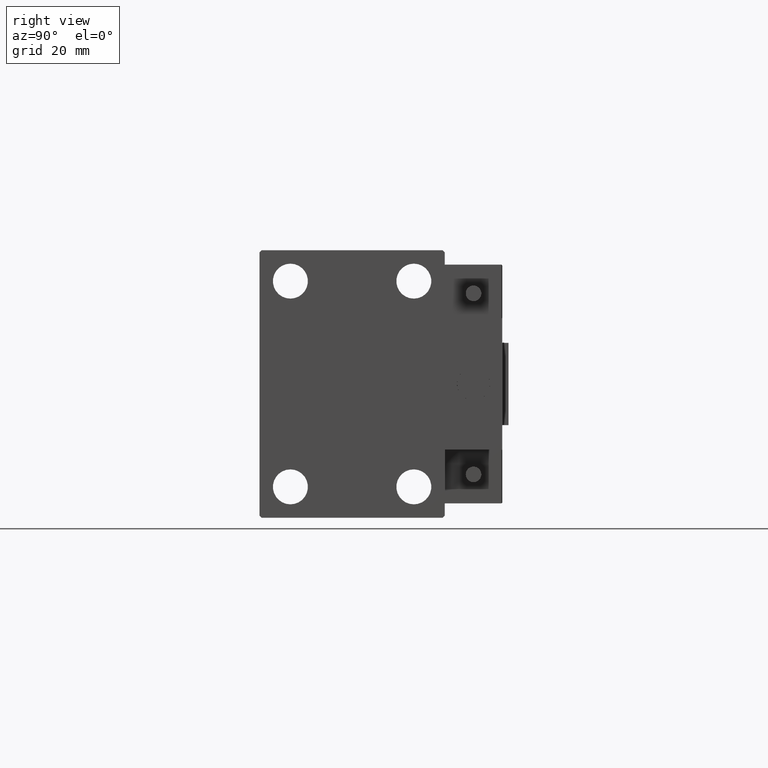
[diagram: clean part render]
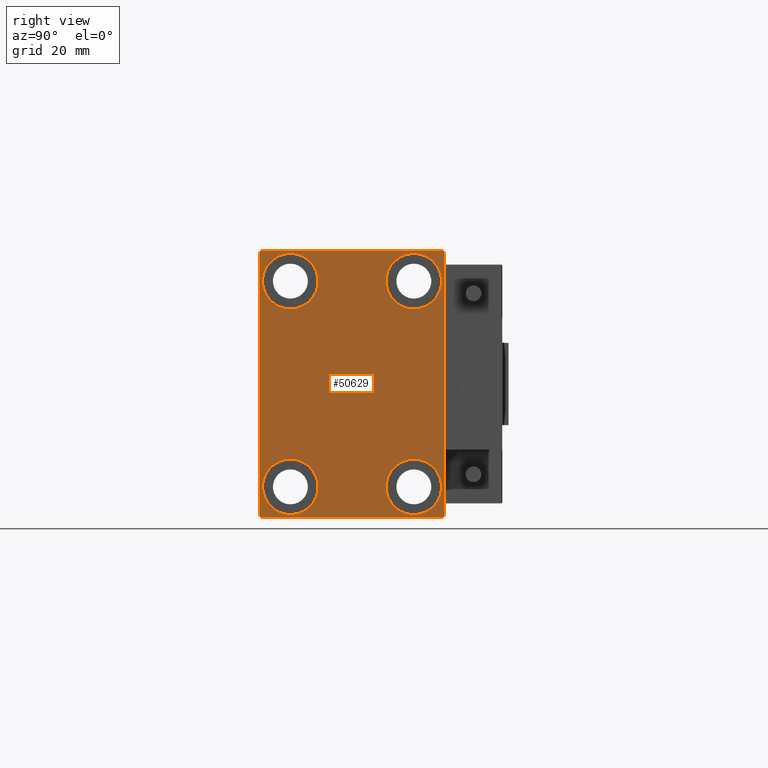
[diagram: same view with one face highlighted and labeled with its STEP entity id]
A machine part, right view. The second image highlights one B-rep face of the part: STEP entity #50629.
In plain terms, the highlighted planar face has unit normal (1, 0, 0).
Its self-contained STEP definition (entity closure, byte-faithful):
#129 = CARTESIAN_POINT ( 'NONE',  ( 75.00000000000000000, 27.25000000000000355, -27.25000000000000355 ) ) ;
#1000 = CARTESIAN_POINT ( 'NONE',  ( 75.00000000000000000, 15.00000000000000355, 25.00000000000000000 ) ) ;
#1061 = CARTESIAN_POINT ( 'NONE',  ( 75.00000000000000000, 22.00000000000000711, 32.50000000000000000 ) ) ;
#1193 = CARTESIAN_POINT ( 'NONE',  ( 75.00000000000000000, -14.99999999999999645, 18.25000000000000355 ) ) ;
#2494 = CARTESIAN_POINT ( 'NONE',  ( 75.00000000000000000, 22.49999999999999289, 32.00000000000002132 ) ) ;
#2640 = CARTESIAN_POINT ( 'NONE',  ( 75.00000000000000000, -15.00000000000000355, -18.25000000000000355 ) ) ;
#2769 = DIRECTION ( 'NONE',  ( 1.000000000000000000, 0.000000000000000000, 0.000000000000000000 ) ) ;
#2948 = VERTEX_POINT ( 'NONE', #36790 ) ;
#3277 = FACE_BOUND ( 'NONE', #41850, .T. ) ;
#3279 = CARTESIAN_POINT ( 'NONE',  ( 75.00000000000000000, 21.99999999999998579, -32.50000000000000711 ) ) ;
#3368 = AXIS2_PLACEMENT_3D ( 'NONE', #24569, #28912, #36865 ) ;
#3709 = EDGE_CURVE ( 'NONE', #21370, #4604, #11254, .T. ) ;
#3927 = EDGE_CURVE ( 'NONE', #11640, #37557, #48172, .T. ) ;
#4604 = VERTEX_POINT ( 'NONE', #39318 ) ;
#4760 = ORIENTED_EDGE ( 'NONE', *, *, #3927, .T. ) ;
#4961 = VERTEX_POINT ( 'NONE', #35908 ) ;
#6033 = ORIENTED_EDGE ( 'NONE', *, *, #31157, .T. ) ;
#6259 = CARTESIAN_POINT ( 'NONE',  ( 75.00000000000000000, -15.00000000000000355, -25.00000000000000000 ) ) ;
#7768 = VERTEX_POINT ( 'NONE', #45129 ) ;
#8790 = LINE ( 'NONE', #40080, #29173 ) ;
#9381 = AXIS2_PLACEMENT_3D ( 'NONE', #35213, #15716, #38813 ) ;
#10141 = DIRECTION ( 'NONE',  ( 0.000000000000000000, -0.7071067811865474617, -0.7071067811865474617 ) ) ;
#10964 = CARTESIAN_POINT ( 'NONE',  ( 75.00000000000000000, 27.24999999999985079, 27.25000000000023093 ) ) ;
#11212 = DIRECTION ( 'NONE',  ( 0.000000000000000000, 0.000000000000000000, -1.000000000000000000 ) ) ;
#11254 = CIRCLE ( 'NONE', #16966, 6.749999999999999112 ) ;
#11633 = EDGE_CURVE ( 'NONE', #45560, #27930, #43273, .T. ) ;
#11640 = VERTEX_POINT ( 'NONE', #1193 ) ;
#11934 = VERTEX_POINT ( 'NONE', #40857 ) ;
#12225 = VECTOR ( 'NONE', #24277, 1000.000000000000000 ) ;
#12563 = CIRCLE ( 'NONE', #41235, 6.749999999999999112 ) ;
#13160 = EDGE_CURVE ( 'NONE', #27930, #26496, #49666, .T. ) ;
#13439 = DIRECTION ( 'NONE',  ( -1.000000000000000000, -0.000000000000000000, -0.000000000000000000 ) ) ;
#13970 = DIRECTION ( 'NONE',  ( -0.000000000000000000, 0.7071067811865474617, -0.7071067811865474617 ) ) ;
#14297 = DIRECTION ( 'NONE',  ( -1.000000000000000000, -0.000000000000000000, -0.000000000000000000 ) ) ;
#15051 = ORIENTED_EDGE ( 'NONE', *, *, #15188, .T. ) ;
#15188 = EDGE_CURVE ( 'NONE', #37557, #11640, #34785, .T. ) ;
#15716 = DIRECTION ( 'NONE',  ( -1.000000000000000000, -0.000000000000000000, -0.000000000000000000 ) ) ;
#16537 = VECTOR ( 'NONE', #34058, 1000.000000000000000 ) ;
#16966 = AXIS2_PLACEMENT_3D ( 'NONE', #19560, #28501, #24155 ) ;
#17533 = ORIENTED_EDGE ( 'NONE', *, *, #19327, .T. ) ;
#17725 = DIRECTION ( 'NONE',  ( -1.000000000000000000, -0.000000000000000000, -0.000000000000000000 ) ) ;
#18418 = CARTESIAN_POINT ( 'NONE',  ( 75.00000000000000000, 22.50000000000000000, -32.50000000000000711 ) ) ;
#18889 = DIRECTION ( 'NONE',  ( 0.000000000000000000, 0.000000000000000000, 1.000000000000000000 ) ) ;
#18929 = CIRCLE ( 'NONE', #3368, 6.749999999999999112 ) ;
#19288 = DIRECTION ( 'NONE',  ( -0.000000000000000000, 0.7071067811865474617, 0.7071067811865474617 ) ) ;
#19327 = EDGE_CURVE ( 'NONE', #26496, #4961, #8790, .T. ) ;
#19361 = CARTESIAN_POINT ( 'NONE',  ( 75.00000000000000000, -22.50000000000000711, -32.50000000000000711 ) ) ;
#19560 = CARTESIAN_POINT ( 'NONE',  ( 75.00000000000000000, -15.00000000000000355, -25.00000000000000000 ) ) ;
#19600 = ORIENTED_EDGE ( 'NONE', *, *, #34617, .T. ) ;
#19781 = ORIENTED_EDGE ( 'NONE', *, *, #43436, .T. ) ;
#19859 = EDGE_CURVE ( 'NONE', #46226, #7768, #23471, .T. ) ;
#21302 = VECTOR ( 'NONE', #19288, 1000.000000000000114 ) ;
#21370 = VERTEX_POINT ( 'NONE', #2640 ) ;
#21528 = EDGE_LOOP ( 'NONE', ( #4760, #15051 ) ) ;
#22193 = ORIENTED_EDGE ( 'NONE', *, *, #35379, .T. ) ;
#22234 = VECTOR ( 'NONE', #10141, 1000.000000000000114 ) ;
#22303 = CIRCLE ( 'NONE', #28024, 6.749999999999999112 ) ;
#23155 = CARTESIAN_POINT ( 'NONE',  ( 75.00000000000000000, 14.99999999999999645, -31.75000000000000000 ) ) ;
#23270 = DIRECTION ( 'NONE',  ( -0.000000000000000000, -0.7071067811865525687, 0.7071067811865425767 ) ) ;
#23471 = CIRCLE ( 'NONE', #48867, 6.749999999999999112 ) ;
#23782 = CARTESIAN_POINT ( 'NONE',  ( 75.00000000000000000, 22.49999999999999289, 32.50000000000000000 ) ) ;
#24155 = DIRECTION ( 'NONE',  ( 0.000000000000000000, 0.000000000000000000, 1.000000000000000000 ) ) ;
#24277 = DIRECTION ( 'NONE',  ( 0.000000000000000000, -1.000000000000000000, -1.541976423090495387E-16 ) ) ;
#24336 = DIRECTION ( 'NONE',  ( -1.000000000000000000, -0.000000000000000000, -0.000000000000000000 ) ) ;
#24569 = CARTESIAN_POINT ( 'NONE',  ( 75.00000000000000000, 15.00000000000000355, 25.00000000000000000 ) ) ;
#25061 = DIRECTION ( 'NONE',  ( 0.000000000000000000, 0.000000000000000000, 1.000000000000000000 ) ) ;
#26351 = FACE_BOUND ( 'NONE', #50131, .T. ) ;
#26496 = VERTEX_POINT ( 'NONE', #32986 ) ;
#26844 = AXIS2_PLACEMENT_3D ( 'NONE', #44918, #17725, #33361 ) ;
#27058 = LINE ( 'NONE', #19361, #42777 ) ;
#27273 = ORIENTED_EDGE ( 'NONE', *, *, #35214, .T. ) ;
#27304 = DIRECTION ( 'NONE',  ( 0.000000000000000000, 1.000000000000000000, 0.000000000000000000 ) ) ;
#27485 = ORIENTED_EDGE ( 'NONE', *, *, #41733, .T. ) ;
#27777 = ORIENTED_EDGE ( 'NONE', *, *, #13160, .T. ) ;
#27899 = EDGE_LOOP ( 'NONE', ( #49114, #27777, #17533, #19781, #27485, #6033, #22193, #19600 ) ) ;
#27930 = VERTEX_POINT ( 'NONE', #37479 ) ;
#28024 = AXIS2_PLACEMENT_3D ( 'NONE', #6259, #13439, #32933 ) ;
#28501 = DIRECTION ( 'NONE',  ( -1.000000000000000000, -0.000000000000000000, -0.000000000000000000 ) ) ;
#28912 = DIRECTION ( 'NONE',  ( -1.000000000000000000, -0.000000000000000000, -0.000000000000000000 ) ) ;
#29173 = VECTOR ( 'NONE', #48029, 1000.000000000000000 ) ;
#29798 = ORIENTED_EDGE ( 'NONE', *, *, #3709, .T. ) ;
#29806 = ORIENTED_EDGE ( 'NONE', *, *, #45077, .T. ) ;
#30121 = CARTESIAN_POINT ( 'NONE',  ( 75.00000000000000000, -27.25000000000000711, -27.25000000000000711 ) ) ;
#30458 = CIRCLE ( 'NONE', #33715, 6.749999999999999112 ) ;
#30931 = CARTESIAN_POINT ( 'NONE',  ( 75.00000000000000000, 14.99999999999999645, -25.00000000000000000 ) ) ;
#31157 = EDGE_CURVE ( 'NONE', #45984, #39464, #35271, .T. ) ;
#32488 = VERTEX_POINT ( 'NONE', #36345 ) ;
#32612 = VERTEX_POINT ( 'NONE', #2494 ) ;
#32933 = DIRECTION ( 'NONE',  ( 0.000000000000000000, 0.000000000000000000, 1.000000000000000000 ) ) ;
#32955 = VECTOR ( 'NONE', #13970, 1000.000000000000114 ) ;
#32986 = CARTESIAN_POINT ( 'NONE',  ( 75.00000000000000000, -22.50000000000000711, 32.00000000000000711 ) ) ;
#33361 = DIRECTION ( 'NONE',  ( 0.000000000000000000, 0.000000000000000000, 1.000000000000000000 ) ) ;
#33378 = EDGE_CURVE ( 'NONE', #11934, #32488, #18929, .T. ) ;
#33460 = LINE ( 'NONE', #30121, #32955 ) ;
#33715 = AXIS2_PLACEMENT_3D ( 'NONE', #1000, #24336, #43833 ) ;
#34052 = FACE_BOUND ( 'NONE', #45751, .T. ) ;
#34058 = DIRECTION ( 'NONE',  ( 0.000000000000000000, -1.067522139062650425E-16, 1.000000000000000000 ) ) ;
#34515 = ORIENTED_EDGE ( 'NONE', *, *, #33378, .T. ) ;
#34617 = EDGE_CURVE ( 'NONE', #32612, #45560, #46355, .T. ) ;
#34785 = CIRCLE ( 'NONE', #9381, 6.749999999999999112 ) ;
#35213 = CARTESIAN_POINT ( 'NONE',  ( 75.00000000000000000, -14.99999999999999645, 25.00000000000000000 ) ) ;
#35214 = EDGE_CURVE ( 'NONE', #32488, #11934, #30458, .T. ) ;
#35271 = LINE ( 'NONE', #129, #21302 ) ;
#35379 = EDGE_CURVE ( 'NONE', #39464, #32612, #45348, .T. ) ;
#35908 = CARTESIAN_POINT ( 'NONE',  ( 75.00000000000000000, -22.50000000000000711, -32.00000000000000711 ) ) ;
#36345 = CARTESIAN_POINT ( 'NONE',  ( 75.00000000000000000, 15.00000000000000355, 18.25000000000000355 ) ) ;
#36790 = CARTESIAN_POINT ( 'NONE',  ( 75.00000000000000000, -22.00000000000000711, -32.50000000000000711 ) ) ;
#36808 = EDGE_CURVE ( 'NONE', #4604, #21370, #22303, .T. ) ;
#36865 = DIRECTION ( 'NONE',  ( 0.000000000000000000, 0.000000000000000000, 1.000000000000000000 ) ) ;
#37368 = CARTESIAN_POINT ( 'NONE',  ( 75.00000000000000000, 14.99999999999999645, -25.00000000000000000 ) ) ;
#37479 = CARTESIAN_POINT ( 'NONE',  ( 75.00000000000000000, -22.00000000000000711, 32.49999999999999289 ) ) ;
#37557 = VERTEX_POINT ( 'NONE', #45850 ) ;
#38155 = PLANE ( 'NONE',  #45399 ) ;
#38642 = ORIENTED_EDGE ( 'NONE', *, *, #36808, .T. ) ;
#38813 = DIRECTION ( 'NONE',  ( 0.000000000000000000, 0.000000000000000000, 1.000000000000000000 ) ) ;
#39318 = CARTESIAN_POINT ( 'NONE',  ( 75.00000000000000000, -15.00000000000000355, -31.75000000000000000 ) ) ;
#39464 = VERTEX_POINT ( 'NONE', #41143 ) ;
#40080 = CARTESIAN_POINT ( 'NONE',  ( 75.00000000000000000, -22.50000000000000711, 32.49999999999999289 ) ) ;
#40592 = ORIENTED_EDGE ( 'NONE', *, *, #19859, .T. ) ;
#40857 = CARTESIAN_POINT ( 'NONE',  ( 75.00000000000000000, 15.00000000000000355, 31.75000000000000000 ) ) ;
#41143 = CARTESIAN_POINT ( 'NONE',  ( 75.00000000000000000, 22.50000000000000000, -32.00000000000000711 ) ) ;
#41235 = AXIS2_PLACEMENT_3D ( 'NONE', #37368, #14297, #25061 ) ;
#41733 = EDGE_CURVE ( 'NONE', #2948, #45984, #27058, .T. ) ;
#41850 = EDGE_LOOP ( 'NONE', ( #27273, #34515 ) ) ;
#42005 = FACE_OUTER_BOUND ( 'NONE', #27899, .T. ) ;
#42777 = VECTOR ( 'NONE', #27304, 1000.000000000000000 ) ;
#43273 = LINE ( 'NONE', #23782, #12225 ) ;
#43436 = EDGE_CURVE ( 'NONE', #4961, #2948, #33460, .T. ) ;
#43833 = DIRECTION ( 'NONE',  ( 0.000000000000000000, 0.000000000000000000, 1.000000000000000000 ) ) ;
#44918 = CARTESIAN_POINT ( 'NONE',  ( 75.00000000000000000, -14.99999999999999645, 25.00000000000000000 ) ) ;
#45077 = EDGE_CURVE ( 'NONE', #7768, #46226, #12563, .T. ) ;
#45129 = CARTESIAN_POINT ( 'NONE',  ( 75.00000000000000000, 14.99999999999999645, -18.25000000000000355 ) ) ;
#45348 = LINE ( 'NONE', #18418, #16537 ) ;
#45399 = AXIS2_PLACEMENT_3D ( 'NONE', #49476, #2769, #11212 ) ;
#45560 = VERTEX_POINT ( 'NONE', #1061 ) ;
#45751 = EDGE_LOOP ( 'NONE', ( #38642, #29798 ) ) ;
#45798 = CARTESIAN_POINT ( 'NONE',  ( 75.00000000000000000, -27.25000000000000711, 27.25000000000000711 ) ) ;
#45850 = CARTESIAN_POINT ( 'NONE',  ( 75.00000000000000000, -14.99999999999999645, 31.75000000000000000 ) ) ;
#45984 = VERTEX_POINT ( 'NONE', #3279 ) ;
#46113 = FACE_BOUND ( 'NONE', #21528, .T. ) ;
#46226 = VERTEX_POINT ( 'NONE', #23155 ) ;
#46355 = LINE ( 'NONE', #10964, #49262 ) ;
#48029 = DIRECTION ( 'NONE',  ( 0.000000000000000000, 0.000000000000000000, -1.000000000000000000 ) ) ;
#48172 = CIRCLE ( 'NONE', #26844, 6.749999999999999112 ) ;
#48867 = AXIS2_PLACEMENT_3D ( 'NONE', #30931, #49965, #18889 ) ;
#49114 = ORIENTED_EDGE ( 'NONE', *, *, #11633, .T. ) ;
#49262 = VECTOR ( 'NONE', #23270, 999.9999999999998863 ) ;
#49476 = CARTESIAN_POINT ( 'NONE',  ( 75.00000000000000000, 0.000000000000000000, 0.000000000000000000 ) ) ;
#49666 = LINE ( 'NONE', #45798, #22234 ) ;
#49965 = DIRECTION ( 'NONE',  ( -1.000000000000000000, -0.000000000000000000, -0.000000000000000000 ) ) ;
#50131 = EDGE_LOOP ( 'NONE', ( #40592, #29806 ) ) ;
#50629 = ADVANCED_FACE ( 'NONE', ( #26351, #46113, #3277, #34052, #42005 ), #38155, .T. ) ;